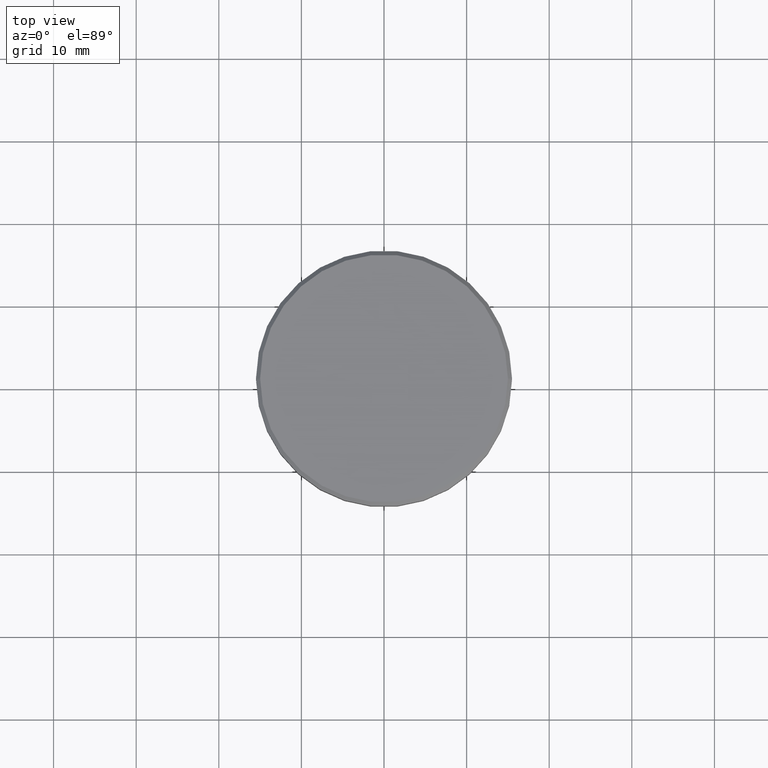
[diagram: clean part render]
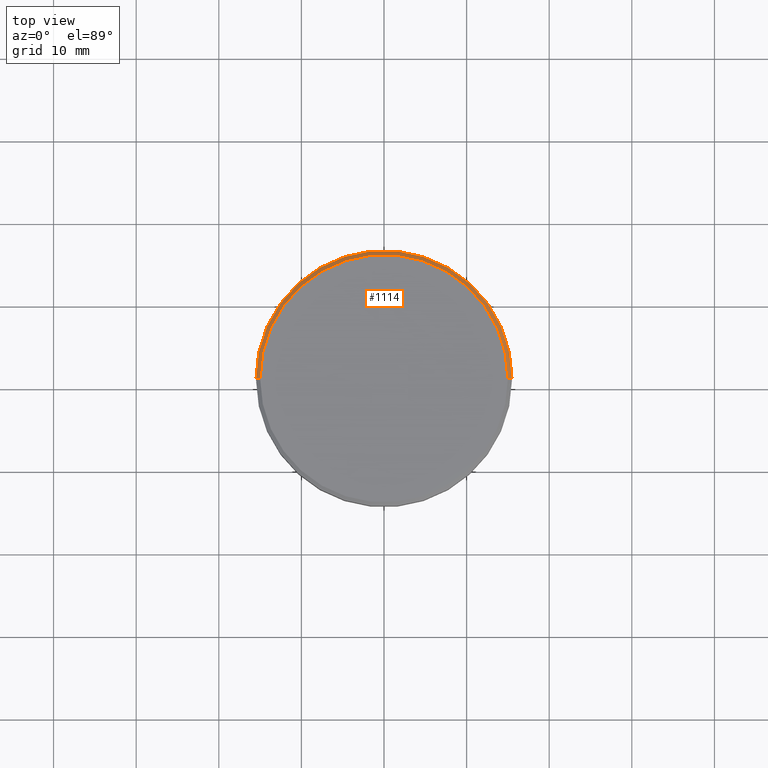
[diagram: same view with one face highlighted and labeled with its STEP entity id]
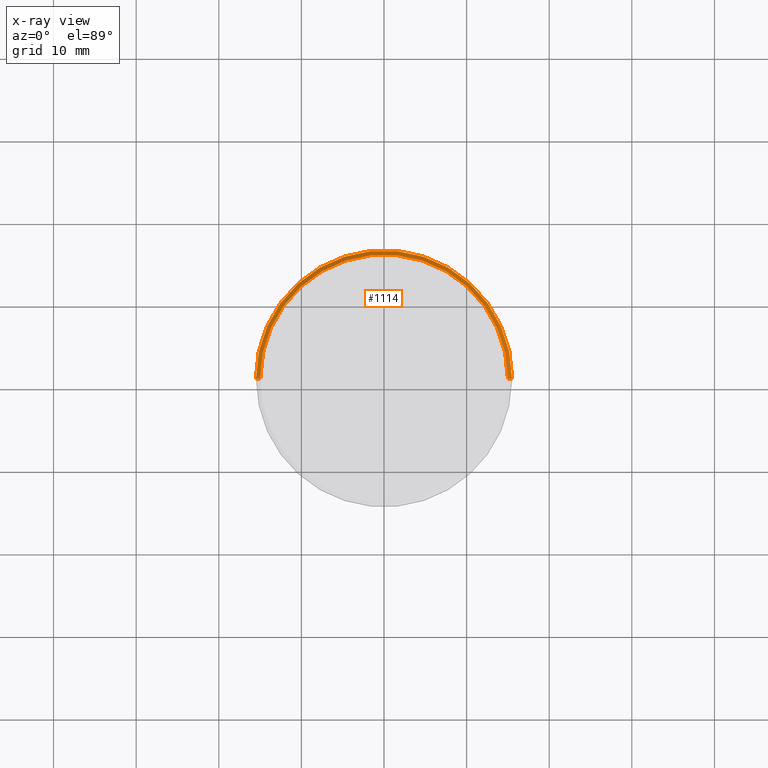
[diagram: x-ray of the same camera — body ghosted, the highlighted face saturated]
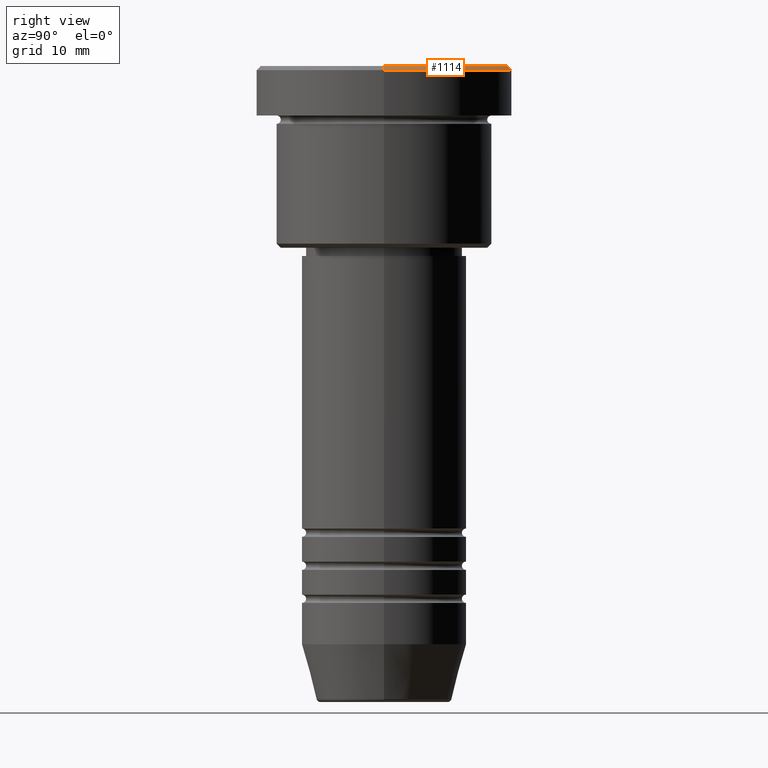
[diagram: same view with one face highlighted and labeled with its STEP entity id]
A machine part, top view. The second image highlights one B-rep face of the part: STEP entity #1114.
The next image is the same camera in x-ray: the body ghosted, the highlighted face saturated — about 0% of this face is hidden behind the body in this view.
A second angle (right view) of the same face is appended — the face is thin or edge-on in the first view.
In plain terms, the highlighted conical surface has half-angle 45 deg.
Its self-contained STEP definition (entity closure, byte-faithful):
#10 = CIRCLE ( 'NONE', #299, 15.50000000000000000 ) ;
#20 = DIRECTION ( 'NONE',  ( 0.7071067811865487940, 8.659560562354950115E-17, -0.7071067811865463515 ) ) ;
#34 = AXIS2_PLACEMENT_3D ( 'NONE', #782, #672, #53 ) ;
#51 = LINE ( 'NONE', #1181, #392 ) ;
#53 = DIRECTION ( 'NONE',  ( -1.000000000000000000, 0.000000000000000000, 0.000000000000000000 ) ) ;
#113 = CARTESIAN_POINT ( 'NONE',  ( 15.00000000000000000, 1.836970198721029589E-15, 0.000000000000000000 ) ) ;
#121 = AXIS2_PLACEMENT_3D ( 'NONE', #626, #1172, #443 ) ;
#128 = EDGE_CURVE ( 'NONE', #946, #670, #747, .T. ) ;
#267 = CARTESIAN_POINT ( 'NONE',  ( 15.00000000000000000, 1.867586368699713376E-15, 0.000000000000000000 ) ) ;
#286 = CARTESIAN_POINT ( 'NONE',  ( 15.50000000000000000, 0.000000000000000000, -0.4999999999999987232 ) ) ;
#299 = AXIS2_PLACEMENT_3D ( 'NONE', #1054, #401, #863 ) ;
#356 = ORIENTED_EDGE ( 'NONE', *, *, #857, .F. ) ;
#368 = EDGE_CURVE ( 'NONE', #495, #670, #10, .T. ) ;
#392 = VECTOR ( 'NONE', #520, 1000.000000000000000 ) ;
#400 = FACE_OUTER_BOUND ( 'NONE', #479, .T. ) ;
#401 = DIRECTION ( 'NONE',  ( 0.000000000000000000, 0.000000000000000000, -1.000000000000000000 ) ) ;
#425 = ORIENTED_EDGE ( 'NONE', *, *, #593, .F. ) ;
#443 = DIRECTION ( 'NONE',  ( 1.000000000000000000, 0.000000000000000000, 0.000000000000000000 ) ) ;
#479 = EDGE_LOOP ( 'NONE', ( #425, #1103, #810, #356 ) ) ;
#495 = VERTEX_POINT ( 'NONE', #1047 ) ;
#520 = DIRECTION ( 'NONE',  ( -0.7071067811865487940, 0.000000000000000000, -0.7071067811865463515 ) ) ;
#593 = EDGE_CURVE ( 'NONE', #946, #1041, #965, .T. ) ;
#626 = CARTESIAN_POINT ( 'NONE',  ( 0.000000000000000000, 0.000000000000000000, 0.000000000000000000 ) ) ;
#639 = VECTOR ( 'NONE', #20, 1000.000000000000000 ) ;
#670 = VERTEX_POINT ( 'NONE', #286 ) ;
#672 = DIRECTION ( 'NONE',  ( 0.000000000000000000, 0.000000000000000000, -1.000000000000000000 ) ) ;
#747 = LINE ( 'NONE', #113, #639 ) ;
#782 = CARTESIAN_POINT ( 'NONE',  ( 0.000000000000000000, 0.000000000000000000, 0.000000000000000000 ) ) ;
#810 = ORIENTED_EDGE ( 'NONE', *, *, #368, .F. ) ;
#857 = EDGE_CURVE ( 'NONE', #1041, #495, #51, .T. ) ;
#863 = DIRECTION ( 'NONE',  ( 1.000000000000000000, 0.000000000000000000, 0.000000000000000000 ) ) ;
#938 = CARTESIAN_POINT ( 'NONE',  ( -15.00000000000000000, 0.000000000000000000, 0.000000000000000000 ) ) ;
#946 = VERTEX_POINT ( 'NONE', #267 ) ;
#965 = CIRCLE ( 'NONE', #121, 15.00000000000000000 ) ;
#1041 = VERTEX_POINT ( 'NONE', #938 ) ;
#1047 = CARTESIAN_POINT ( 'NONE',  ( -15.50000000000000000, 1.898202538678397557E-15, -0.4999999999999987232 ) ) ;
#1054 = CARTESIAN_POINT ( 'NONE',  ( 0.000000000000000000, 0.000000000000000000, -0.4999999999999987232 ) ) ;
#1058 = CONICAL_SURFACE ( 'NONE', #34, 15.00000000000000000, 0.7853981633974500554 ) ;
#1103 = ORIENTED_EDGE ( 'NONE', *, *, #128, .T. ) ;
#1114 = ADVANCED_FACE ( 'NONE', ( #400 ), #1058, .T. ) ;
#1172 = DIRECTION ( 'NONE',  ( -0.000000000000000000, -0.000000000000000000, 1.000000000000000000 ) ) ;
#1181 = CARTESIAN_POINT ( 'NONE',  ( -15.00000000000000000, 0.000000000000000000, 0.000000000000000000 ) ) ;